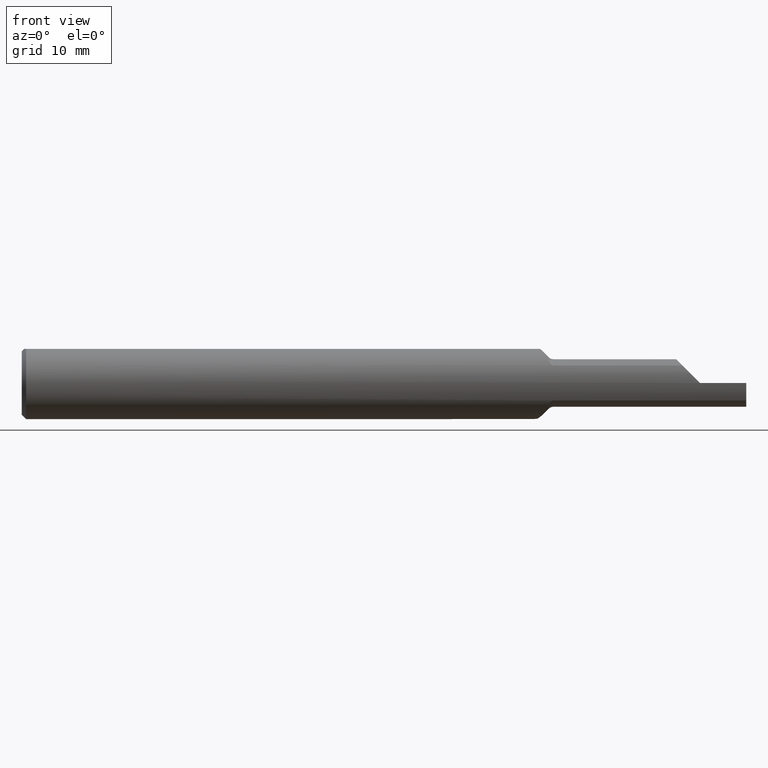
[diagram: clean part render]
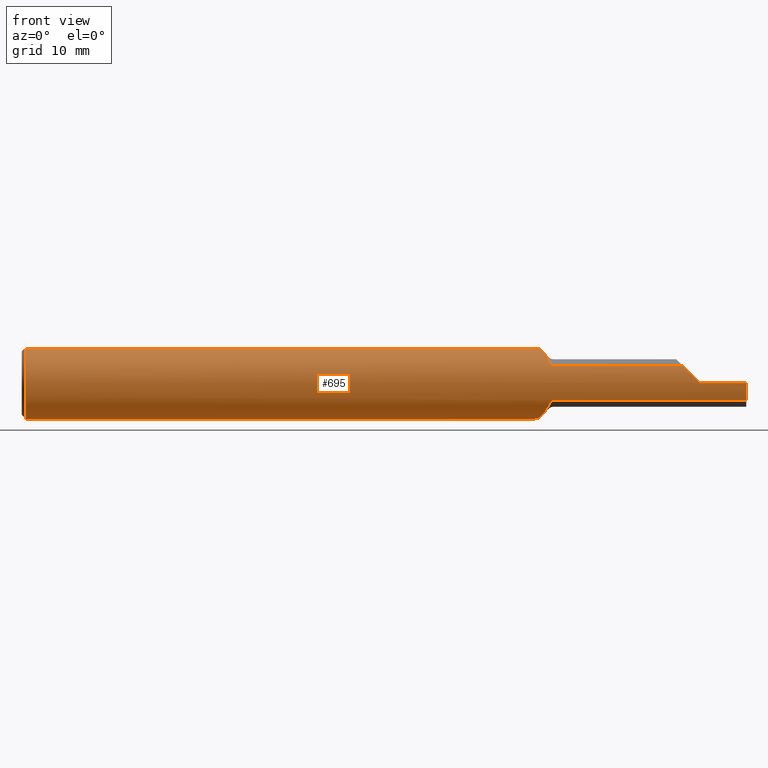
[diagram: same view with one face highlighted and labeled with its STEP entity id]
A machine part, front view. The second image highlights one B-rep face of the part: STEP entity #695.
In plain terms, the highlighted cylindrical surface (edge-blend (fillet) strip) has radius 3.1712 mm, axis along (-1, -0, -0).
Its self-contained STEP definition (entity closure, byte-faithful):
#3 = VERTEX_POINT ( 'NONE', #824 ) ;
#7 = DIRECTION ( 'NONE',  ( 1.000000000000000000, 0.000000000000000000, 0.000000000000000000 ) ) ;
#9 = EDGE_CURVE ( 'NONE', #53, #467, #992, .T. ) ;
#14 = CARTESIAN_POINT ( 'NONE',  ( 1.732712175932292764, 0.1103780572707721841, -0.05898486146697049654 ) ) ;
#17 = VERTEX_POINT ( 'NONE', #134 ) ;
#18 = CARTESIAN_POINT ( 'NONE',  ( 1.758512132561073082, 0.03299390727127152201, -0.1206996000235016492 ) ) ;
#23 = LINE ( 'NONE', #807, #429 ) ;
#30 = CARTESIAN_POINT ( 'NONE',  ( 1.835355339059327129, -0.1092232590529249175, 0.06047976671464317527 ) ) ;
#32 = DIRECTION ( 'NONE',  ( -1.000000000000000000, -0.000000000000000000, -0.000000000000000000 ) ) ;
#33 = CARTESIAN_POINT ( 'NONE',  ( 2.500000000000000000, -0.1248500000000000026, -6.429183357567480113E-17 ) ) ;
#34 = EDGE_CURVE ( 'NONE', #607, #214, #203, .T. ) ;
#40 = CARTESIAN_POINT ( 'NONE',  ( 1.730462960335073852, 0.1177049268757191097, 0.04252629315925844644 ) ) ;
#45 = CARTESIAN_POINT ( 'NONE',  ( 1.728307645274177018, 0.1248246293531362072, -0.009059102546146306431 ) ) ;
#48 = EDGE_CURVE ( 'NONE', #214, #181, #130, .T. ) ;
#53 = VERTEX_POINT ( 'NONE', #455 ) ;
#55 = AXIS2_PLACEMENT_3D ( 'NONE', #255, #863, #642 ) ;
#58 = CARTESIAN_POINT ( 'NONE',  ( 0.01499999999999915637, 0.000000000000000000, 0.000000000000000000 ) ) ;
#69 = CARTESIAN_POINT ( 'NONE',  ( 1.835355339059327129, -0.1092232590529249175, 0.06047976671464317527 ) ) ;
#74 = ORIENTED_EDGE ( 'NONE', *, *, #876, .F. ) ;
#81 = DIRECTION ( 'NONE',  ( 1.000000000000000000, -0.000000000000000000, -0.000000000000000000 ) ) ;
#87 = ORIENTED_EDGE ( 'NONE', *, *, #199, .F. ) ;
#93 = CARTESIAN_POINT ( 'NONE',  ( 1.737245667956669015, 0.09588377974169853823, -0.08041761774452953204 ) ) ;
#96 = AXIS2_PLACEMENT_3D ( 'NONE', #218, #32, #829 ) ;
#100 = CARTESIAN_POINT ( 'NONE',  ( 1.770717154365183621, 0.0006952854228127722290, -0.1251122305936488988 ) ) ;
#113 = EDGE_CURVE ( 'NONE', #3, #892, #402, .T. ) ;
#116 = ORIENTED_EDGE ( 'NONE', *, *, #9, .T. ) ;
#117 = CARTESIAN_POINT ( 'NONE',  ( 1.817677669529663698, -0.09757536006822693786, -0.07788819941143756975 ) ) ;
#118 = DIRECTION ( 'NONE',  ( -1.000000000000000000, -0.000000000000000000, -0.000000000000000000 ) ) ;
#125 = FACE_OUTER_BOUND ( 'NONE', #337, .T. ) ;
#127 = CARTESIAN_POINT ( 'NONE',  ( 1.817677669529663698, -0.09757536006822693786, -0.07788819941143756975 ) ) ;
#130 =( BOUNDED_CURVE ( )  B_SPLINE_CURVE ( 3, ( #1001, #290, #542, #610 ),
 .UNSPECIFIED., .F., .T. ) 
 B_SPLINE_CURVE_WITH_KNOTS ( ( 4, 4 ),
 ( 4.717595251401206724, 5.218088401039794988 ),
 .UNSPECIFIED. ) 
 CURVE ( )  GEOMETRIC_REPRESENTATION_ITEM ( )  RATIONAL_B_SPLINE_CURVE ( ( 1.000000000000000000, 0.9792342591134636232, 0.9792342591134636232, 1.000000000000000000 ) ) 
 REPRESENTATION_ITEM ( '' )  );
#133 = VECTOR ( 'NONE', #465, 39.37007874015748143 ) ;
#134 = CARTESIAN_POINT ( 'NONE',  ( 2.500000000000000000, -0.1092232590529248343, -0.06047976671464327242 ) ) ;
#136 = CIRCLE ( 'NONE', #401, 0.1248500000000000026 ) ;
#144 = CARTESIAN_POINT ( 'NONE',  ( 1.817677669529663698, -0.09757536006822682684, 0.07788819941143769465 ) ) ;
#148 = CARTESIAN_POINT ( 'NONE',  ( 1.728292661776026806, 0.1248743517081793430, 0.008345760453748515134 ) ) ;
#150 = LINE ( 'NONE', #226, #986 ) ;
#158 = AXIS2_PLACEMENT_3D ( 'NONE', #1017, #81, #497 ) ;
#160 = CARTESIAN_POINT ( 'NONE',  ( 1.794360308949286997, -0.05384999999999984938, 0.1126396910507127397 ) ) ;
#163 = ORIENTED_EDGE ( 'NONE', *, *, #676, .F. ) ;
#171 = VECTOR ( 'NONE', #673, 39.37007874015748143 ) ;
#174 = EDGE_CURVE ( 'NONE', #602, #813, #560, .T. ) ;
#175 = CARTESIAN_POINT ( 'NONE',  ( 1.794360308949286997, -0.05384999999999984938, 0.1126396910507127397 ) ) ;
#181 = VERTEX_POINT ( 'NONE', #315 ) ;
#187 = ORIENTED_EDGE ( 'NONE', *, *, #230, .T. ) ;
#191 = VERTEX_POINT ( 'NONE', #69 ) ;
#196 = LINE ( 'NONE', #33, #171 ) ;
#199 = EDGE_CURVE ( 'NONE', #53, #711, #519, .T. ) ;
#201 = CARTESIAN_POINT ( 'NONE',  ( 1.794360308949286997, -0.05384999999999984938, 0.1126396910507127397 ) ) ;
#203 = CIRCLE ( 'NONE', #96, 0.1248500000000000026 ) ;
#204 = CARTESIAN_POINT ( 'NONE',  ( 1.830665190807285292, -0.1086642080583792996, 0.06149810290720676004 ) ) ;
#214 = VERTEX_POINT ( 'NONE', #435 ) ;
#216 = CARTESIAN_POINT ( 'NONE',  ( 1.794360308949286997, -0.05384999999999987713, -0.1126396910507129895 ) ) ;
#218 = CARTESIAN_POINT ( 'NONE',  ( 2.340000000000000302, 0.000000000000000000, 0.000000000000000000 ) ) ;
#222 = CARTESIAN_POINT ( 'NONE',  ( 1.826962198219145961, -0.1071162112943781497, -0.06415590405709573063 ) ) ;
#226 = CARTESIAN_POINT ( 'NONE',  ( 2.132500000000000284, -0.1092232590529249175, 0.06047976671464317527 ) ) ;
#230 = EDGE_CURVE ( 'NONE', #475, #607, #196, .T. ) ;
#231 = CARTESIAN_POINT ( 'NONE',  ( 1.752777405358408425, 0.04911217211498520446, 0.1150889351251595111 ) ) ;
#235 = EDGE_CURVE ( 'NONE', #711, #813, #648, .T. ) ;
#247 = CARTESIAN_POINT ( 'NONE',  ( 2.500000000000000000, 0.04121771463824756843, 0.1178499999999999687 ) ) ;
#250 = CARTESIAN_POINT ( 'NONE',  ( 2.500000000000000000, -0.1248499999999998639, -6.429183357567480113E-17 ) ) ;
#255 = CARTESIAN_POINT ( 'NONE',  ( 2.500000000000000000, 0.000000000000000000, 0.000000000000000000 ) ) ;
#265 = ORIENTED_EDGE ( 'NONE', *, *, #742, .T. ) ;
#266 = CARTESIAN_POINT ( 'NONE',  ( 1.798392172266039646, -0.06228357174294846255, -0.1086078277339595360 ) ) ;
#273 = CARTESIAN_POINT ( 'NONE',  ( 1.728592796547383514, 0.1238762422632727761, -0.01785370171071018822 ) ) ;
#283 = EDGE_CURVE ( 'NONE', #874, #516, #136, .T. ) ;
#284 = CARTESIAN_POINT ( 'NONE',  ( 1.794360308949286997, -0.05384999999999987713, -0.1126396910507129895 ) ) ;
#285 = CARTESIAN_POINT ( 'NONE',  ( 1.780618111080304544, -0.02345850299424015115, -0.1228873624478613175 ) ) ;
#290 = CARTESIAN_POINT ( 'NONE',  ( 2.318951041317546036, -0.1247387203844464582, 0.02169895868245421203 ) ) ;
#293 = CARTESIAN_POINT ( 'NONE',  ( 1.826933221887751868, -0.1071033782730417688, 0.06417782433708593692 ) ) ;
#301 = CARTESIAN_POINT ( 'NONE',  ( 1.825420685984550095, -0.1061316532341534113, -0.06578430891981580653 ) ) ;
#304 = CARTESIAN_POINT ( 'NONE',  ( 1.814114347521600834, -0.09166478948370536395, -0.08529273639330904599 ) ) ;
#315 = CARTESIAN_POINT ( 'NONE',  ( 2.280170233285356840, -0.1092232590529250702, 0.06047976671464286996 ) ) ;
#335 = CARTESIAN_POINT ( 'NONE',  ( 1.755585030903349830, 0.04121771463824760312, 0.1178499999999999687 ) ) ;
#337 = EDGE_LOOP ( 'NONE', ( #163, #809, #187, #627, #831, #74, #265, #725, #658, #862, #973, #925, #838, #879, #87, #116 ) ) ;
#368 = CARTESIAN_POINT ( 'NONE',  ( 1.743028069144324732, 0.07795044821351296283, 0.09789949563707647795 ) ) ;
#373 = CARTESIAN_POINT ( 'NONE',  ( 1.733969531083607851, 0.1063112730066525374, 0.06602160618934209413 ) ) ;
#401 = AXIS2_PLACEMENT_3D ( 'NONE', #58, #1021, #530 ) ;
#402 = B_SPLINE_CURVE_WITH_KNOTS ( 'NONE', 3,
 ( #907, #441, #668, #201 ),
 .UNSPECIFIED., .F., .F.,
 ( 4, 4 ),
 ( 6.499887323063328718E-07, 0.0003759154806911573377 ),
 .UNSPECIFIED. ) ;
#403 = LINE ( 'NONE', #718, #880 ) ;
#409 = CARTESIAN_POINT ( 'NONE',  ( 2.340000000000000302, -0.1248499999999999888, -6.429183357567478880E-17 ) ) ;
#410 = CARTESIAN_POINT ( 'NONE',  ( 1.802371494825159237, -0.07015628064319796853, 0.1037036661047725100 ) ) ;
#413 = CARTESIAN_POINT ( 'NONE',  ( 1.734080122634848564, 0.1059557457630696531, -0.06658883090317450903 ) ) ;
#424 = CARTESIAN_POINT ( 'NONE',  ( 1.790895012493112226, -0.04660153347776028326, -0.1161049875068869974 ) ) ;
#429 = VECTOR ( 'NONE', #770, 39.37007874015748143 ) ;
#435 = CARTESIAN_POINT ( 'NONE',  ( 2.340000000000000302, -0.1248483079580979677, 0.0006500000000000181848 ) ) ;
#441 = CARTESIAN_POINT ( 'NONE',  ( 1.790443885248390599, -0.04555147614139515300, 0.1163342787870431660 ) ) ;
#447 = CARTESIAN_POINT ( 'NONE',  ( 1.728562795712754951, 0.1239757960105904583, 0.01714946330206153571 ) ) ;
#455 = CARTESIAN_POINT ( 'NONE',  ( 1.817677669529663698, -0.09757536006822693786, -0.07788819941143756975 ) ) ;
#465 = DIRECTION ( 'NONE',  ( 1.000000000000000000, 0.000000000000000000, 0.000000000000000000 ) ) ;
#467 = VERTEX_POINT ( 'NONE', #710 ) ;
#475 = VERTEX_POINT ( 'NONE', #250 ) ;
#484 = AXIS2_PLACEMENT_3D ( 'NONE', #598, #118, #684 ) ;
#490 = EDGE_CURVE ( 'NONE', #3, #874, #403, .T. ) ;
#494 = CARTESIAN_POINT ( 'NONE',  ( 1.810257776121336759, -0.08490049444921436705, -0.09201960690303402635 ) ) ;
#497 = DIRECTION ( 'NONE',  ( 0.000000000000000000, 0.000000000000000000, -1.000000000000000000 ) ) ;
#499 = CARTESIAN_POINT ( 'NONE',  ( 1.745221222652045823, 0.07119892425873025621, -0.1039737782297506241 ) ) ;
#500 = CARTESIAN_POINT ( 'NONE',  ( 1.802384750484449238, -0.07018097216312824127, -0.1036838133873760198 ) ) ;
#516 = VERTEX_POINT ( 'NONE', #956 ) ;
#519 = B_SPLINE_CURVE_WITH_KNOTS ( 'NONE', 3,
 ( #117, #304, #494, #500, #266, #284 ),
 .UNSPECIFIED., .F., .F.,
 ( 4, 2, 4 ),
 ( 0.0005623257698924439803, 0.001333637506710151199, 0.002104949243527857658 ),
 .UNSPECIFIED. ) ;
#526 = CARTESIAN_POINT ( 'NONE',  ( 1.755585030903349830, 0.04121771463824760312, 0.1178499999999999687 ) ) ;
#530 = DIRECTION ( 'NONE',  ( 0.000000000000000000, 0.000000000000000000, -1.000000000000000000 ) ) ;
#534 = CARTESIAN_POINT ( 'NONE',  ( 1.738936206027245746, 0.09056553397004218908, 0.08636242052769635413 ) ) ;
#542 = CARTESIAN_POINT ( 'NONE',  ( 2.298584867048271807, -0.1194199219594680728, 0.04206513295172762540 ) ) ;
#543 = CARTESIAN_POINT ( 'NONE',  ( 1.729653929997966966, 0.1203712711388903456, 0.03427621875901759596 ) ) ;
#546 = CARTESIAN_POINT ( 'NONE',  ( 1.821358455275256638, -0.1028995269237766297, 0.07081783775154880389 ) ) ;
#551 = CARTESIAN_POINT ( 'NONE',  ( 1.810273525043294418, -0.08492984738016756685, 0.09199606024846244956 ) ) ;
#558 = CIRCLE ( 'NONE', #158, 0.1248500000000000026 ) ;
#560 = LINE ( 'NONE', #247, #133 ) ;
#572 = CARTESIAN_POINT ( 'NONE',  ( 0.01499999999999915117, -0.04121771463824756843, 0.1178499999999999687 ) ) ;
#593 = CARTESIAN_POINT ( 'NONE',  ( 1.794360308949286997, -0.05384999999999987713, -0.1126396910507129895 ) ) ;
#594 = VERTEX_POINT ( 'NONE', #811 ) ;
#598 = CARTESIAN_POINT ( 'NONE',  ( 2.500000000000000000, 0.000000000000000000, 0.000000000000000000 ) ) ;
#602 = VERTEX_POINT ( 'NONE', #906 ) ;
#603 = CARTESIAN_POINT ( 'NONE',  ( 1.825428119850462494, -0.1061368998998793445, 0.06577590783013505249 ) ) ;
#607 = VERTEX_POINT ( 'NONE', #409 ) ;
#608 = CARTESIAN_POINT ( 'NONE',  ( 1.819371375400745228, -0.1003847520001933669, 0.07436870054760662263 ) ) ;
#610 = CARTESIAN_POINT ( 'NONE',  ( 2.280170233285356840, -0.1092232590529250702, 0.06047976671464286996 ) ) ;
#627 = ORIENTED_EDGE ( 'NONE', *, *, #34, .T. ) ;
#642 = DIRECTION ( 'NONE',  ( 0.000000000000000000, 0.000000000000000000, -1.000000000000000000 ) ) ;
#648 = B_SPLINE_CURVE_WITH_KNOTS ( 'NONE', 3,
 ( #593, #424, #991, #285, #654, #100, #739, #734, #18, #888, #499, #904, #93, #413, #14, #663, #980, #273, #45, #148, #447, #543, #40, #755, #373, #687, #534, #368, #779, #919, #231, #526 ),
 .UNSPECIFIED., .F., .F.,
 ( 4, 2, 2, 2, 2, 2, 2, 2, 2, 2, 2, 2, 2, 2, 2, 4 ),
 ( 0.002104949243527857658, 0.002767874451605675194, 0.003430799659683491862, 0.004093724867761308964, 0.004756650075839126066, 0.006082500491994762004, 0.006745425700072580841, 0.007408350908150398810, 0.008071276116228220249, 0.008734201324306039085, 0.009397126532383857922, 0.01006005174046167849, 0.01072297694853949733, 0.01138590215661731790, 0.01204882736469513674, 0.01271175257277295731 ),
 .UNSPECIFIED. ) ;
#654 = CARTESIAN_POINT ( 'NONE',  ( 1.777285799365850405, -0.01552792876629423280, -0.1241468368270671474 ) ) ;
#658 = ORIENTED_EDGE ( 'NONE', *, *, #113, .F. ) ;
#663 = CARTESIAN_POINT ( 'NONE',  ( 1.730536078330021876, 0.1174650585046836948, -0.04317973413117326409 ) ) ;
#668 = CARTESIAN_POINT ( 'NONE',  ( 1.792405354557547792, -0.04976076214106339018, 0.1145946454424518479 ) ) ;
#673 = DIRECTION ( 'NONE',  ( -1.000000000000000000, -0.000000000000000000, -0.000000000000000000 ) ) ;
#676 = EDGE_CURVE ( 'NONE', #17, #467, #23, .T. ) ;
#681 = B_SPLINE_CURVE_WITH_KNOTS ( 'NONE', 3,
 ( #30, #689, #204, #293, #603, #546, #608, #1005 ),
 .UNSPECIFIED., .F., .F.,
 ( 4, 2, 2, 4 ),
 ( 0.000000000000000000, 0.0001829640378895299249, 0.0003659280757790598498, 0.0007318561515581190492 ),
 .UNSPECIFIED. ) ;
#684 = DIRECTION ( 'NONE',  ( 0.000000000000000000, 0.000000000000000000, 1.000000000000000000 ) ) ;
#687 = CARTESIAN_POINT ( 'NONE',  ( 1.737115366813515971, 0.09629498163691818657, 0.07992631458825785740 ) ) ;
#689 = CARTESIAN_POINT ( 'NONE',  ( 1.832909819032332077, -0.1092232590529249175, 0.06047976671464318221 ) ) ;
#695 = ADVANCED_FACE ( 'NONE', ( #125 ), #1000, .T. ) ;
#699 = CARTESIAN_POINT ( 'NONE',  ( 1.798378328400242143, -0.06225461410568892268, 0.1086216715997574411 ) ) ;
#707 = CIRCLE ( 'NONE', #55, 0.1248500000000000026 ) ;
#710 = CARTESIAN_POINT ( 'NONE',  ( 1.835355339059327129, -0.1092232590529249175, -0.06047976671464317527 ) ) ;
#711 = VERTEX_POINT ( 'NONE', #216 ) ;
#718 = CARTESIAN_POINT ( 'NONE',  ( 2.500000000000000000, -0.04121771463824756843, 0.1178499999999999687 ) ) ;
#725 = ORIENTED_EDGE ( 'NONE', *, *, #815, .F. ) ;
#734 = CARTESIAN_POINT ( 'NONE',  ( 1.761427742683870257, 0.02502016939989049060, -0.1225872677846763653 ) ) ;
#739 = CARTESIAN_POINT ( 'NONE',  ( 1.767515387793463955, 0.008907587619892767122, -0.1247970431641114847 ) ) ;
#742 = EDGE_CURVE ( 'NONE', #191, #594, #681, .T. ) ;
#755 = CARTESIAN_POINT ( 'NONE',  ( 1.732617721705286273, 0.1106840597410798932, 0.05841210781951485659 ) ) ;
#760 = CARTESIAN_POINT ( 'NONE',  ( 1.835355339059327129, -0.1092232590529249175, -0.06047976671464317527 ) ) ;
#770 = DIRECTION ( 'NONE',  ( -1.000000000000000000, -0.000000000000000000, -0.000000000000000000 ) ) ;
#779 = CARTESIAN_POINT ( 'NONE',  ( 1.745261026241044844, 0.07118132008229842433, 0.1029127484947739840 ) ) ;
#791 = DIRECTION ( 'NONE',  ( -1.000000000000000000, -0.000000000000000000, -0.000000000000000000 ) ) ;
#807 = CARTESIAN_POINT ( 'NONE',  ( 2.132500000000000284, -0.1092232590529249175, -0.06047976671464317527 ) ) ;
#809 = ORIENTED_EDGE ( 'NONE', *, *, #872, .F. ) ;
#811 = CARTESIAN_POINT ( 'NONE',  ( 1.817677669529663698, -0.09757536006822682684, 0.07788819941143769465 ) ) ;
#813 = VERTEX_POINT ( 'NONE', #335 ) ;
#815 = EDGE_CURVE ( 'NONE', #892, #594, #902, .T. ) ;
#824 = CARTESIAN_POINT ( 'NONE',  ( 1.788474909266177582, -0.04121771463824756149, 0.1178499999999999687 ) ) ;
#829 = DIRECTION ( 'NONE',  ( 0.000000000000000000, 0.000000000000000000, 1.000000000000000000 ) ) ;
#831 = ORIENTED_EDGE ( 'NONE', *, *, #48, .T. ) ;
#832 = EDGE_CURVE ( 'NONE', #516, #602, #558, .T. ) ;
#835 = CARTESIAN_POINT ( 'NONE',  ( 1.830647326731917213, -0.1086560203840502420, -0.06151204745207228264 ) ) ;
#838 = ORIENTED_EDGE ( 'NONE', *, *, #174, .T. ) ;
#846 = CARTESIAN_POINT ( 'NONE',  ( 1.832911797174156199, -0.1092232590529250702, -0.06047976671464312670 ) ) ;
#862 = ORIENTED_EDGE ( 'NONE', *, *, #490, .T. ) ;
#863 = DIRECTION ( 'NONE',  ( 1.000000000000000000, 0.000000000000000000, 0.000000000000000000 ) ) ;
#872 = EDGE_CURVE ( 'NONE', #475, #17, #707, .T. ) ;
#874 = VERTEX_POINT ( 'NONE', #572 ) ;
#876 = EDGE_CURVE ( 'NONE', #191, #181, #150, .T. ) ;
#879 = ORIENTED_EDGE ( 'NONE', *, *, #235, .F. ) ;
#880 = VECTOR ( 'NONE', #791, 39.37007874015748143 ) ;
#886 = CARTESIAN_POINT ( 'NONE',  ( 1.814115188924500188, -0.09166618513956301117, 0.08529098796897936763 ) ) ;
#888 = CARTESIAN_POINT ( 'NONE',  ( 1.750102514793752118, 0.05662065004892576081, -0.1125144432482683698 ) ) ;
#892 = VERTEX_POINT ( 'NONE', #175 ) ;
#902 = B_SPLINE_CURVE_WITH_KNOTS ( 'NONE', 3,
 ( #160, #699, #410, #551, #886, #144 ),
 .UNSPECIFIED., .F., .F.,
 ( 4, 2, 4 ),
 ( 0.0003759154806911573377, 0.001147198970645922026, 0.001918482460600686931 ),
 .UNSPECIFIED. ) ;
#904 = CARTESIAN_POINT ( 'NONE',  ( 1.739054113973735216, 0.09019730472389544951, -0.08674702553567584240 ) ) ;
#906 = CARTESIAN_POINT ( 'NONE',  ( 0.01499999999999915637, 0.04121771463824756843, 0.1178499999999999687 ) ) ;
#907 = CARTESIAN_POINT ( 'NONE',  ( 1.788474909266177582, -0.04121771463824756149, 0.1178499999999999687 ) ) ;
#919 = CARTESIAN_POINT ( 'NONE',  ( 1.750128247105726231, 0.05678253849940156223, 0.1115058628636682453 ) ) ;
#923 = CARTESIAN_POINT ( 'NONE',  ( 1.819370994534824870, -0.1003841202484446887, -0.07436949198205780598 ) ) ;
#925 = ORIENTED_EDGE ( 'NONE', *, *, #832, .T. ) ;
#930 = CARTESIAN_POINT ( 'NONE',  ( 1.821357460634228431, -0.1028973980012129058, -0.07082069229871552907 ) ) ;
#956 = CARTESIAN_POINT ( 'NONE',  ( 0.01499999999999915637, 0.000000000000000000, -0.1248500000000000026 ) ) ;
#973 = ORIENTED_EDGE ( 'NONE', *, *, #283, .T. ) ;
#980 = CARTESIAN_POINT ( 'NONE',  ( 1.729713424993187809, 0.1201752156510427216, -0.03495705372695821073 ) ) ;
#986 = VECTOR ( 'NONE', #7, 39.37007874015748143 ) ;
#991 = CARTESIAN_POINT ( 'NONE',  ( 1.787405634749426486, -0.03896054242991985050, -0.1188851603257918416 ) ) ;
#992 = B_SPLINE_CURVE_WITH_KNOTS ( 'NONE', 3,
 ( #127, #923, #930, #301, #222, #835, #846, #760 ),
 .UNSPECIFIED., .F., .F.,
 ( 4, 2, 2, 4 ),
 ( 6.133173666733496745E-19, 0.0003640423453010448326, 0.0005460635179515670049, 0.0007280846906020891230 ),
 .UNSPECIFIED. ) ;
#1000 = CYLINDRICAL_SURFACE ( 'NONE', #484, 0.1248500000000000026 ) ;
#1001 = CARTESIAN_POINT ( 'NONE',  ( 2.340000000000000302, -0.1248483079580979677, 0.0006500000000000181848 ) ) ;
#1005 = CARTESIAN_POINT ( 'NONE',  ( 1.817677669529663698, -0.09757536006822682684, 0.07788819941143769465 ) ) ;
#1017 = CARTESIAN_POINT ( 'NONE',  ( 0.01499999999999915637, 0.000000000000000000, 0.000000000000000000 ) ) ;
#1021 = DIRECTION ( 'NONE',  ( 1.000000000000000000, -0.000000000000000000, -0.000000000000000000 ) ) ;